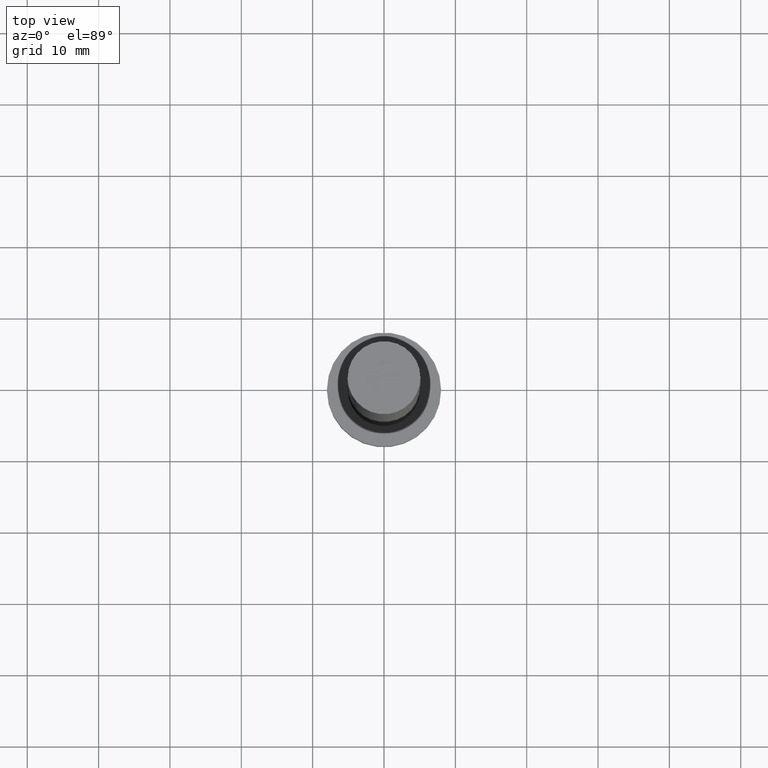
[diagram: clean part render]
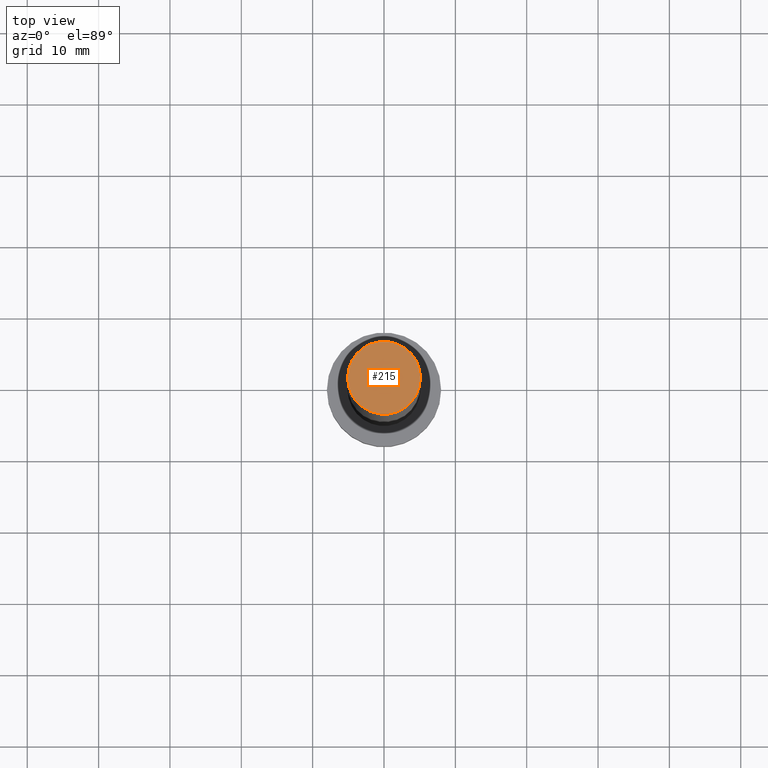
[diagram: same view with one face highlighted and labeled with its STEP entity id]
A machine part, top view. The second image highlights one B-rep face of the part: STEP entity #215.
In plain terms, the highlighted planar face has unit normal (0, 0, 1).
Its self-contained STEP definition (entity closure, byte-faithful):
#3 = EDGE_CURVE ( 'NONE', #112, #210, #176, .T. ) ;
#38 = DIRECTION ( 'NONE',  ( 0.000000000000000000, 0.000000000000000000, 1.000000000000000000 ) ) ;
#42 = CARTESIAN_POINT ( 'NONE',  ( -5.099999999999999645, 0.000000000000000000, 100.0000000000000000 ) ) ;
#67 = CIRCLE ( 'NONE', #200, 5.099999999999999645 ) ;
#83 = FACE_OUTER_BOUND ( 'NONE', #90, .T. ) ;
#84 = EDGE_CURVE ( 'NONE', #210, #112, #67, .T. ) ;
#90 = EDGE_LOOP ( 'NONE', ( #224, #129 ) ) ;
#112 = VERTEX_POINT ( 'NONE', #123 ) ;
#115 = DIRECTION ( 'NONE',  ( 1.000000000000000000, 0.000000000000000000, 0.000000000000000000 ) ) ;
#123 = CARTESIAN_POINT ( 'NONE',  ( 5.099999999999999645, 6.245698675651500839E-16, 100.0000000000000000 ) ) ;
#129 = ORIENTED_EDGE ( 'NONE', *, *, #3, .T. ) ;
#141 = DIRECTION ( 'NONE',  ( 1.000000000000000000, 0.000000000000000000, 0.000000000000000000 ) ) ;
#147 = AXIS2_PLACEMENT_3D ( 'NONE', #155, #38, #115 ) ;
#155 = CARTESIAN_POINT ( 'NONE',  ( 0.000000000000000000, 0.000000000000000000, 100.0000000000000000 ) ) ;
#163 = DIRECTION ( 'NONE',  ( 0.000000000000000000, 0.000000000000000000, 1.000000000000000000 ) ) ;
#176 = CIRCLE ( 'NONE', #147, 5.099999999999999645 ) ;
#179 = DIRECTION ( 'NONE',  ( 0.000000000000000000, 0.000000000000000000, 1.000000000000000000 ) ) ;
#200 = AXIS2_PLACEMENT_3D ( 'NONE', #231, #179, #141 ) ;
#206 = AXIS2_PLACEMENT_3D ( 'NONE', #222, #163, #238 ) ;
#210 = VERTEX_POINT ( 'NONE', #42 ) ;
#215 = ADVANCED_FACE ( 'NONE', ( #83 ), #254, .T. ) ;
#222 = CARTESIAN_POINT ( 'NONE',  ( 0.000000000000000000, 0.000000000000000000, 100.0000000000000000 ) ) ;
#224 = ORIENTED_EDGE ( 'NONE', *, *, #84, .T. ) ;
#231 = CARTESIAN_POINT ( 'NONE',  ( 0.000000000000000000, 0.000000000000000000, 100.0000000000000000 ) ) ;
#238 = DIRECTION ( 'NONE',  ( 1.000000000000000000, 0.000000000000000000, -0.000000000000000000 ) ) ;
#254 = PLANE ( 'NONE',  #206 ) ;